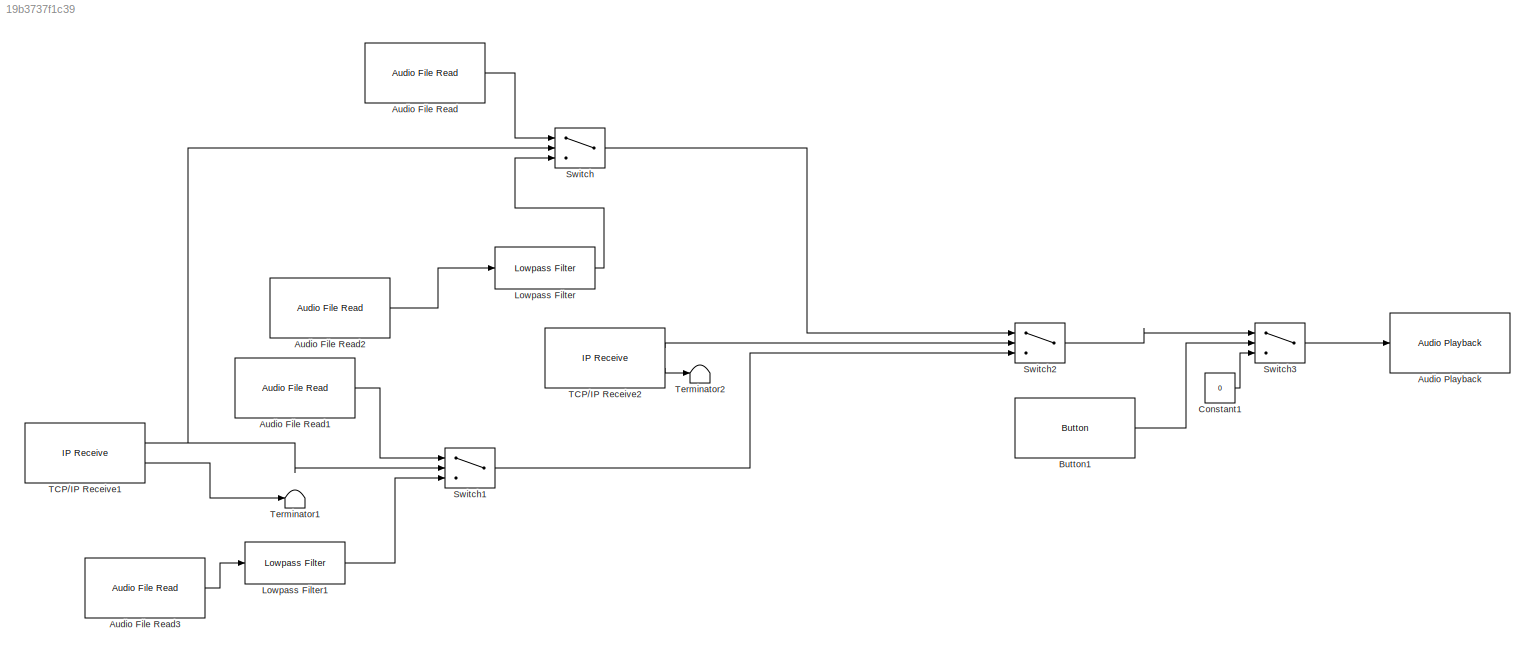
MODEL slx_19b3737f1c39
KIND model
CONFIG AbsTol = auto
CONFIG EnableMultiTasking = off
CONFIG FixedStep = auto
CONFIG MaxStep = auto
CONFIG MinStep = auto
CONFIG RelTol = 1e-3
CONFIG SampleTimeConstraint = Unconstrained
CONFIG Solver = FixedStepDiscrete
CONFIG SolverName = FixedStepDiscrete
CONFIG StartTime = 0.0
CONFIG StopTime = inf
BLOCK [Reference] Audio File Read  REF=androidaudiovideolib/Audio File Read
  Ports = [0, 1]
  SourceBlock = androidaudiovideolib/Audio File Read
  SourceProductBaseCode = ANDROID
  SourceProductName = Simulink Support Package for Android Devices
  SourceType = codertarget.internal.androidAudioFileRead
BLOCK [Reference] Audio File Read1  REF=androidaudiovideolib/Audio File Read
  Ports = [0, 1]
  SourceBlock = androidaudiovideolib/Audio File Read
  SourceProductBaseCode = ANDROID
  SourceProductName = Simulink Support Package for Android Devices
  SourceType = codertarget.internal.androidAudioFileRead
BLOCK [Reference] Audio File Read2  REF=androidaudiovideolib/Audio File Read
  Ports = [0, 1]
  SourceBlock = androidaudiovideolib/Audio File Read
  SourceProductBaseCode = ANDROID
  SourceProductName = Simulink Support Package for Android Devices
  SourceType = codertarget.internal.androidAudioFileRead
BLOCK [Reference] Audio File Read3  REF=androidaudiovideolib/Audio File Read
  Ports = [0, 1]
  SourceBlock = androidaudiovideolib/Audio File Read
  SourceProductBaseCode = ANDROID
  SourceProductName = Simulink Support Package for Android Devices
  SourceType = codertarget.internal.androidAudioFileRead
BLOCK [Reference] Audio Playback  REF=androidaudiovideolib/Audio Playback
  Ports = [1]
  SourceBlock = androidaudiovideolib/Audio Playback
  SourceProductBaseCode = ANDROID
  SourceProductName = Simulink Support Package for Android Devices
  SourceType = codertarget.internal.androidAudioPlayback
BLOCK [Reference] Button1  REF=androiduilib/Button
  Ports = [0, 1]
  SourceBlock = androiduilib/Button
  SourceProductBaseCode = ANDROID
  SourceProductName = Simulink Support Package for Android Devices
  SourceType = codertarget.internal.androidButton
BLOCK [Constant] Constant1
  Value = 0
BLOCK [Reference] Lowpass Filter  REF=dspfdesign/Lowpass Filter
  Ports = [1, 1]
  SourceBlock = dspfdesign/Lowpass Filter
  SourceProductBaseCode = DS
  SourceProductName = DSP System Toolbox
  SourceType = dsp.LowpassFilter
BLOCK [Reference] Lowpass Filter1  REF=dspfdesign/Lowpass Filter
  Ports = [1, 1]
  SourceBlock = dspfdesign/Lowpass Filter
  SourceProductBaseCode = DS
  SourceProductName = DSP System Toolbox
  SourceType = dsp.LowpassFilter
BLOCK [Switch] Switch
  Criteria = u2 ~= 0
  InputSameDT = off
  SaturateOnIntegerOverflow = off
BLOCK [Switch] Switch1
  Criteria = u2 ~= 0
  InputSameDT = off
  SaturateOnIntegerOverflow = off
BLOCK [Switch] Switch2
  Criteria = u2 ~= 0
  InputSameDT = off
  SaturateOnIntegerOverflow = off
BLOCK [Switch] Switch3
  Criteria = u2 ~= 0
  InputSameDT = off
  SaturateOnIntegerOverflow = off
BLOCK [Reference] TCP//IP Receive1  REF=androidcommunicationlib/TCP//IP Receive
  Ports = [0, 2]
  SourceBlock = androidcommunicationlib/TCP//IP Receive
  SourceProductBaseCode = ANDROID
  SourceProductName = Simulink Support Package for Android Devices
  SourceType = codertarget.internal.androidTCPReceive
BLOCK [Reference] TCP//IP Receive2  REF=androidcommunicationlib/TCP//IP Receive
  Ports = [0, 2]
  SourceBlock = androidcommunicationlib/TCP//IP Receive
  SourceProductBaseCode = ANDROID
  SourceProductName = Simulink Support Package for Android Devices
  SourceType = codertarget.internal.androidTCPReceive
BLOCK [Terminator] Terminator1
BLOCK [Terminator] Terminator2
LINE Audio File Read1:1 -> Switch1:1
LINE Audio File Read2:1 -> Lowpass Filter:1
LINE Audio File Read3:1 -> Lowpass Filter1:1
LINE Audio File Read:1 -> Switch:1
LINE Button1:1 -> Switch3:2
LINE Constant1:1 -> Switch3:3
LINE Lowpass Filter1:1 -> Switch1:3
LINE Lowpass Filter:1 -> Switch:3
LINE Switch1:1 -> Switch2:3
LINE Switch2:1 -> Switch3:1
LINE Switch3:1 -> Audio Playback:1
LINE Switch:1 -> Switch2:1
NET TCP//IP Receive1:1 -> Switch1:2, Switch:2
LINE TCP//IP Receive1:2 -> Terminator1:1
LINE TCP//IP Receive2:1 -> Switch2:2
LINE TCP//IP Receive2:2 -> Terminator2:1
note: NET lines group one-source signal fan-out (src -> all destinations, sorted); 1:1 wires keep LINE
